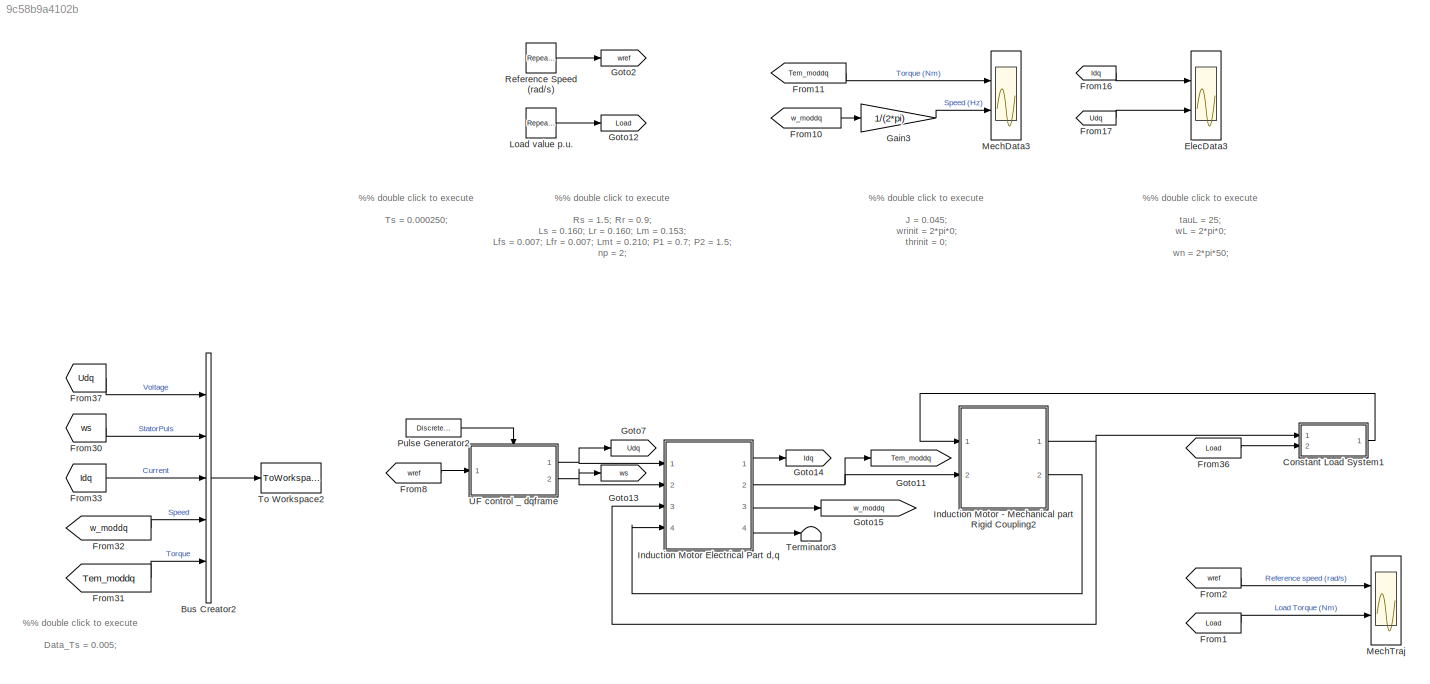
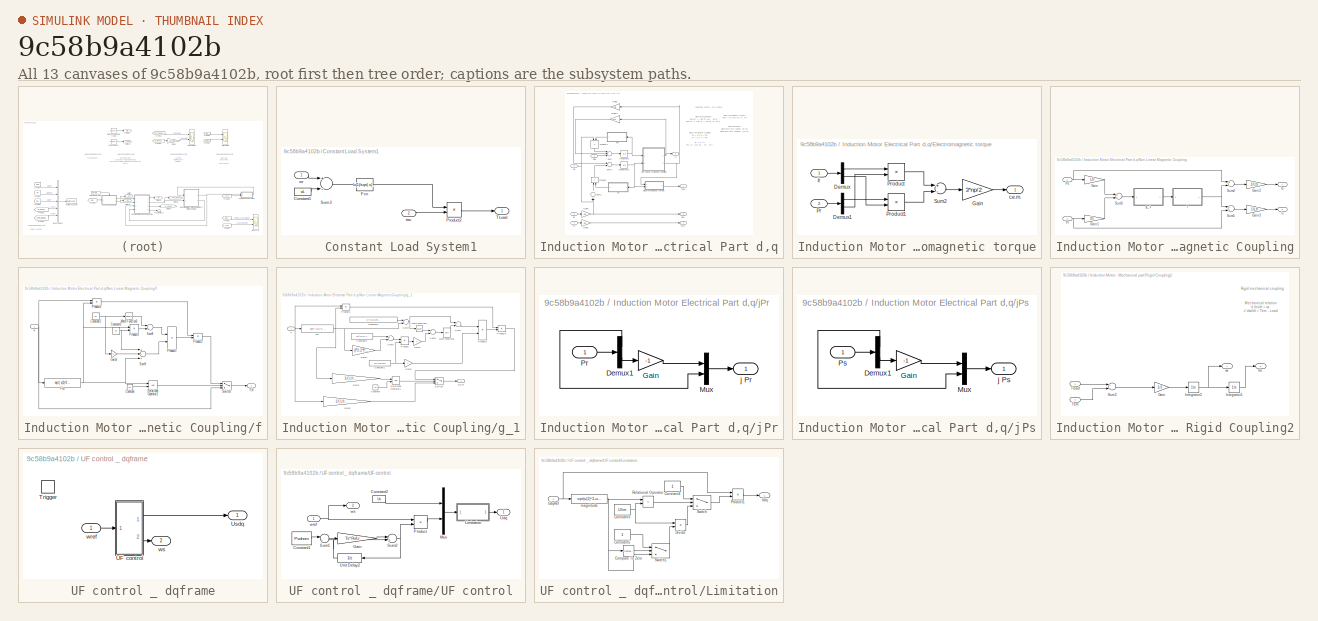
[diagram: thumbnail index - all 13 canvases of the model, root first then tree order]
MODEL slx_9c58b9a4102b
KIND model
BLOCK [BusCreator] Bus Creator2
  DisplayOption = bar
  Inputs = 5
  Ports = [5, 1]
BLOCK [SubSystem] Constant Load System1
  Ports = [2, 1]
  RequestExecContextInheritance = off
BLOCK [Constant] Constant Load System1/Constant1
  Value = wL
BLOCK [Fcn] Constant Load System1/Fcn
  Expr = u(1)/sqrt( u(1)^2 + (2*pi*0.1)^2)
BLOCK [Product] Constant Load System1/Product2
  InputSameDT = off
  OutDataTypeStr = Inherit: Inherit via internal rule
  Ports = [2, 1]
  SaturateOnIntegerOverflow = off
BLOCK [Sum] Constant Load System1/Sum2
  Inputs = +-
  Ports = [2, 1]
BLOCK [Outport] Constant Load System1/TLoad
  IconDisplay = Port number
BLOCK [Inport] Constant Load System1/tau
  IconDisplay = Port number
  Port = 2
BLOCK [Inport] Constant Load System1/wr
  IconDisplay = Port number
BLOCK [Scope] ElecData3
  Commented = on
  Floating = off
  LimitDataPoints = off
  NumInputPorts = 2
  Ports = [2]
  SampleTime = 0
  SaveName = ScopeData8
  ShowLegends = off
  TickLabels = on
  TimeRange = 10
  YMax = 25~5
  YMin = -5~-5
  ZoomMode = xonly
BLOCK [From] From1
  GotoTag = Load
  TagVisibility = global
BLOCK [From] From10
  Commented = on
  GotoTag = w_moddq
BLOCK [From] From11
  Commented = on
  GotoTag = Tem_moddq
BLOCK [From] From16
  Commented = on
  GotoTag = Idq
BLOCK [From] From17
  Commented = on
  GotoTag = Udq
BLOCK [From] From2
  GotoTag = wref
  TagVisibility = global
BLOCK [From] From30
  GotoTag = ws
  TagVisibility = global
BLOCK [From] From31
  GotoTag = Tem_moddq
BLOCK [From] From32
  GotoTag = w_moddq
BLOCK [From] From33
  GotoTag = Idq
BLOCK [From] From36
  GotoTag = Load
  TagVisibility = global
BLOCK [From] From37
  GotoTag = Udq
BLOCK [From] From8
  GotoTag = wref
  TagVisibility = global
BLOCK [Gain] Gain3
  Commented = on
  Gain = 1/(2*pi)
BLOCK [Goto] Goto11
  GotoTag = Tem_moddq
BLOCK [Goto] Goto12
  GotoTag = Load
  TagVisibility = global
BLOCK [Goto] Goto13
  GotoTag = ws
  TagVisibility = global
BLOCK [Goto] Goto14
  GotoTag = Idq
BLOCK [Goto] Goto15
  GotoTag = w_moddq
BLOCK [Goto] Goto2
  GotoTag = wref
  TagVisibility = global
BLOCK [Goto] Goto7
  GotoTag = Udq
BLOCK [SubSystem] Induction Motor - Mechanical part Rigid Coupling2
  Ports = [2, 2]
  RequestExecContextInheritance = off
BLOCK [Gain] Induction Motor - Mechanical part Rigid Coupling2/Gain
  Gain = 1/J
BLOCK [Integrator] Induction Motor - Mechanical part Rigid Coupling2/Integrator1
  InitialCondition = thrinit
  Ports = [1, 1]
BLOCK [Integrator] Induction Motor - Mechanical part Rigid Coupling2/Integrator2
  InitialCondition = wrinit
  Ports = [1, 1]
BLOCK [Sum] Induction Motor - Mechanical part Rigid Coupling2/Sum2
  Inputs = -+
  Ports = [2, 1]
BLOCK [Inport] Induction Motor - Mechanical part Rigid Coupling2/Tem
  IconDisplay = Port number
  Port = 2
BLOCK [Inport] Induction Motor - Mechanical part Rigid Coupling2/Tload
  IconDisplay = Port number
BLOCK [Outport] Induction Motor - Mechanical part Rigid Coupling2/thr
  IconDisplay = Port number
  Port = 2
BLOCK [Outport] Induction Motor - Mechanical part Rigid Coupling2/wr
  IconDisplay = Port number
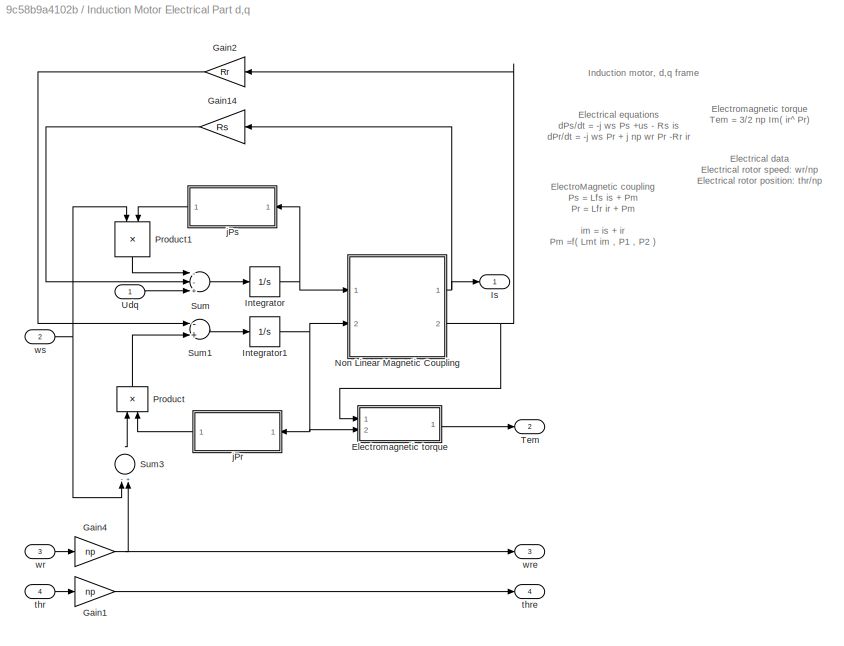
BLOCK [SubSystem] Induction Motor Electrical Part d,q
  Ports = [4, 4]
  RequestExecContextInheritance = off
BLOCK [SubSystem] Induction Motor Electrical Part d,q/Electromagnetic torque
  Ports = [2, 1]
  RequestExecContextInheritance = off
BLOCK [Demux] Induction Motor Electrical Part d,q/Electromagnetic torque/Demux
  Outputs = 2
  Ports = [1, 2]
BLOCK [Demux] Induction Motor Electrical Part d,q/Electromagnetic torque/Demux1
  Outputs = 2
  Ports = [1, 2]
BLOCK [Gain] Induction Motor Electrical Part d,q/Electromagnetic torque/Gain
  Gain = 3*np/2
BLOCK [Inport] Induction Motor Electrical Part d,q/Electromagnetic torque/Ir
  IconDisplay = Port number
BLOCK [Inport] Induction Motor Electrical Part d,q/Electromagnetic torque/Pr
  IconDisplay = Port number
  Port = 2
BLOCK [Product] Induction Motor Electrical Part d,q/Electromagnetic torque/Product
  Ports = [2, 1]
BLOCK [Product] Induction Motor Electrical Part d,q/Electromagnetic torque/Product1
  Ports = [2, 1]
BLOCK [Sum] Induction Motor Electrical Part d,q/Electromagnetic torque/Sum2
  Inputs = +-
  Ports = [2, 1]
BLOCK [Outport] Induction Motor Electrical Part d,q/Electromagnetic torque/c.e.m.
  IconDisplay = Port number
BLOCK [Gain] Induction Motor Electrical Part d,q/Gain1
  Gain = np
BLOCK [Gain] Induction Motor Electrical Part d,q/Gain14
  Gain = Rs
BLOCK [Gain] Induction Motor Electrical Part d,q/Gain2
  Gain = Rr
BLOCK [Gain] Induction Motor Electrical Part d,q/Gain4
  Gain = np
BLOCK [Integrator] Induction Motor Electrical Part d,q/Integrator
  InitialCondition = Psinit
  Ports = [1, 1]
BLOCK [Integrator] Induction Motor Electrical Part d,q/Integrator1
  InitialCondition = Prinit
  Ports = [1, 1]
BLOCK [Outport] Induction Motor Electrical Part d,q/Is
  IconDisplay = Port number
BLOCK [SubSystem] Induction Motor Electrical Part d,q/Non Linear Magnetic Coupling
  Ports = [2, 2]
  RequestExecContextInheritance = off
BLOCK [Gain] Induction Motor Electrical Part d,q/Non Linear Magnetic Coupling/Gain
  Gain = Lfr
BLOCK [Gain] Induction Motor Electrical Part d,q/Non Linear Magnetic Coupling/Gain1
  Gain = Lfs
BLOCK [Gain] Induction Motor Electrical Part d,q/Non Linear Magnetic Coupling/Gain2
  Gain = 1/Lfs
BLOCK [Gain] Induction Motor Electrical Part d,q/Non Linear Magnetic Coupling/Gain3
  Gain = 1/Lfr
BLOCK [Outport] Induction Motor Electrical Part d,q/Non Linear Magnetic Coupling/Ir
  IconDisplay = Port number
  Port = 2
BLOCK [Outport] Induction Motor Electrical Part d,q/Non Linear Magnetic Coupling/Is
  IconDisplay = Port number
BLOCK [Inport] Induction Motor Electrical Part d,q/Non Linear Magnetic Coupling/Pr
  IconDisplay = Port number
  Port = 2
BLOCK [Inport] Induction Motor Electrical Part d,q/Non Linear Magnetic Coupling/Ps
  IconDisplay = Port number
BLOCK [Sum] Induction Motor Electrical Part d,q/Non Linear Magnetic Coupling/Sum3
  Ports = [2, 1]
BLOCK [Sum] Induction Motor Electrical Part d,q/Non Linear Magnetic Coupling/Sum4
  Inputs = +-
  Ports = [2, 1]
BLOCK [Sum] Induction Motor Electrical Part d,q/Non Linear Magnetic Coupling/Sum5
  Inputs = -+
  Ports = [2, 1]
BLOCK [SubSystem] Induction Motor Electrical Part d,q/Non Linear Magnetic Coupling/f
  Ports = [1, 1]
  RequestExecContextInheritance = off
BLOCK [Constant] Induction Motor Electrical Part d,q/Non Linear Magnetic Coupling/f/Constant
  Value = P1
BLOCK [Constant] Induction Motor Electrical Part d,q/Non Linear Magnetic Coupling/f/Constant2
  Value = P1
BLOCK [Constant] Induction Motor Electrical Part d,q/Non Linear Magnetic Coupling/f/Constant3
  Value = P2
BLOCK [Fcn] Induction Motor Electrical Part d,q/Non Linear Magnetic Coupling/f/Fcn
  Expr = sqrt( u(1)^2 + u(2)^2 )
BLOCK [Gain] Induction Motor Electrical Part d,q/Non Linear Magnetic Coupling/f/Gain3
  Gain = 2
BLOCK [Math] Induction Motor Electrical Part d,q/Non Linear Magnetic Coupling/f/Math Function3
  Operator = square
  Ports = [1, 1]
BLOCK [Product] Induction Motor Electrical Part d,q/Non Linear Magnetic Coupling/f/Product1
  Inputs = */
  Ports = [2, 1]
BLOCK [Product] Induction Motor Electrical Part d,q/Non Linear Magnetic Coupling/f/Product2
  Ports = [2, 1]
BLOCK [Product] Induction Motor Electrical Part d,q/Non Linear Magnetic Coupling/f/Product3
  Inputs = */
  Ports = [2, 1]
BLOCK [Product] Induction Motor Electrical Part d,q/Non Linear Magnetic Coupling/f/Product4
  Ports = [2, 1]
BLOCK [RelationalOperator] Induction Motor Electrical Part d,q/Non Linear Magnetic Coupling/f/Relational Operator1
  Ports = [2, 1]
BLOCK [Sum] Induction Motor Electrical Part d,q/Non Linear Magnetic Coupling/f/Sum8
  Inputs = -+
  Ports = [2, 1]
BLOCK [Sum] Induction Motor Electrical Part d,q/Non Linear Magnetic Coupling/f/Sum9
  Inputs = +-+
  Ports = [3, 1]
BLOCK [Switch] Induction Motor Electrical Part d,q/Non Linear Magnetic Coupling/f/Switch
  Threshold = 0.5
BLOCK [Outport] Induction Motor Electrical Part d,q/Non Linear Magnetic Coupling/f/f(u)
  IconDisplay = Port number
  InitialOutput = 0
BLOCK [Inport] Induction Motor Electrical Part d,q/Non Linear Magnetic Coupling/f/u
  IconDisplay = Port number
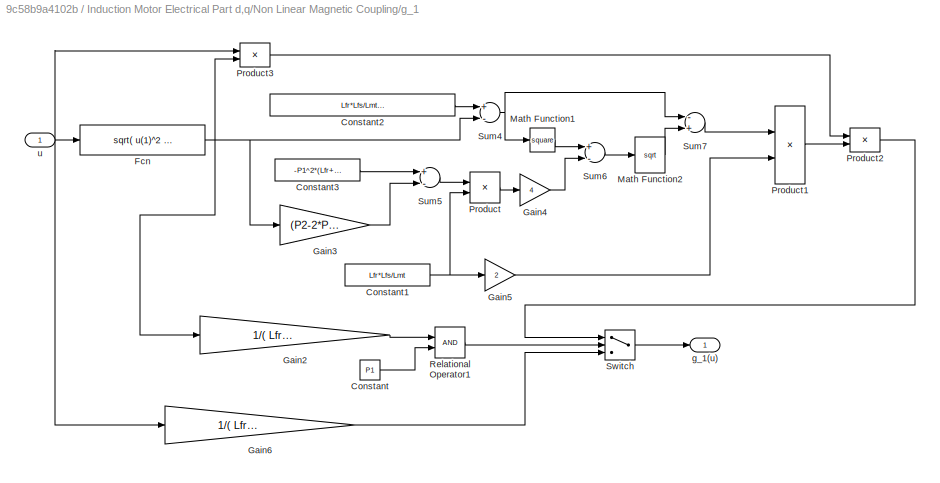
BLOCK [SubSystem] Induction Motor Electrical Part d,q/Non Linear Magnetic Coupling/g_1
  Ports = [1, 1]
  RequestExecContextInheritance = off
BLOCK [Constant] Induction Motor Electrical Part d,q/Non Linear Magnetic Coupling/g_1/Constant
  Value = P1
BLOCK [Constant] Induction Motor Electrical Part d,q/Non Linear Magnetic Coupling/g_1/Constant1
  Value = Lfr*Lfs/Lmt
BLOCK [Constant] Induction Motor Electrical Part d,q/Non Linear Magnetic Coupling/g_1/Constant2
  Value = Lfr*Lfs/Lmt*(P2-2*P1) + P2*(Lfr+Lfs)
BLOCK [Constant] Induction Motor Electrical Part d,q/Non Linear Magnetic Coupling/g_1/Constant3
  Value = -P1^2*(Lfr+Lfs)
BLOCK [Fcn] Induction Motor Electrical Part d,q/Non Linear Magnetic Coupling/g_1/Fcn
  Expr = sqrt( u(1)^2 + u(2)^2 )
BLOCK [Gain] Induction Motor Electrical Part d,q/Non Linear Magnetic Coupling/g_1/Gain2
  Gain = 1/( Lfr*Lfs/Lmt + Lfr + Lfs )
BLOCK [Gain] Induction Motor Electrical Part d,q/Non Linear Magnetic Coupling/g_1/Gain3
  Gain = (P2-2*P1)
BLOCK [Gain] Induction Motor Electrical Part d,q/Non Linear Magnetic Coupling/g_1/Gain4
  Gain = 4
BLOCK [Gain] Induction Motor Electrical Part d,q/Non Linear Magnetic Coupling/g_1/Gain5
  Gain = 2
BLOCK [Gain] Induction Motor Electrical Part d,q/Non Linear Magnetic Coupling/g_1/Gain6
  Gain = 1/( Lfr*Lfs/Lmt + Lfr + Lfs )
BLOCK [Math] Induction Motor Electrical Part d,q/Non Linear Magnetic Coupling/g_1/Math Function1
  Operator = square
  Ports = [1, 1]
BLOCK [Math] Induction Motor Electrical Part d,q/Non Linear Magnetic Coupling/g_1/Math Function2
  Operator = sqrt
  Ports = [1, 1]
BLOCK [Product] Induction Motor Electrical Part d,q/Non Linear Magnetic Coupling/g_1/Product
  Ports = [2, 1]
BLOCK [Product] Induction Motor Electrical Part d,q/Non Linear Magnetic Coupling/g_1/Product1
  Inputs = */
  Ports = [2, 1]
BLOCK [Product] Induction Motor Electrical Part d,q/Non Linear Magnetic Coupling/g_1/Product2
  Ports = [2, 1]
BLOCK [Product] Induction Motor Electrical Part d,q/Non Linear Magnetic Coupling/g_1/Product3
  Inputs = */
  Ports = [2, 1]
BLOCK [RelationalOperator] Induction Motor Electrical Part d,q/Non Linear Magnetic Coupling/g_1/Relational Operator1
  Ports = [2, 1]
BLOCK [Sum] Induction Motor Electrical Part d,q/Non Linear Magnetic Coupling/g_1/Sum4
  Inputs = +-
  Ports = [2, 1]
BLOCK [Sum] Induction Motor Electrical Part d,q/Non Linear Magnetic Coupling/g_1/Sum5
  Inputs = +-
  Ports = [2, 1]
BLOCK [Sum] Induction Motor Electrical Part d,q/Non Linear Magnetic Coupling/g_1/Sum6
  Inputs = +-
  Ports = [2, 1]
BLOCK [Sum] Induction Motor Electrical Part d,q/Non Linear Magnetic Coupling/g_1/Sum7
  Inputs = -+
  Ports = [2, 1]
BLOCK [Switch] Induction Motor Electrical Part d,q/Non Linear Magnetic Coupling/g_1/Switch
  Threshold = 0.5
BLOCK [Outport] Induction Motor Electrical Part d,q/Non Linear Magnetic Coupling/g_1/g_1(u)
  IconDisplay = Port number
  InitialOutput = 0
BLOCK [Inport] Induction Motor Electrical Part d,q/Non Linear Magnetic Coupling/g_1/u
  IconDisplay = Port number
BLOCK [Product] Induction Motor Electrical Part d,q/Product
  Ports = [2, 1]
BLOCK [Product] Induction Motor Electrical Part d,q/Product1
  Ports = [2, 1]
BLOCK [Sum] Induction Motor Electrical Part d,q/Sum
  Inputs = --+
  Ports = [3, 1]
BLOCK [Sum] Induction Motor Electrical Part d,q/Sum1
  Inputs = -+
  Ports = [2, 1]
BLOCK [Sum] Induction Motor Electrical Part d,q/Sum3
  Inputs = -+
  Ports = [2, 1]
BLOCK [Outport] Induction Motor Electrical Part d,q/Tem
  IconDisplay = Port number
  Port = 2
BLOCK [Inport] Induction Motor Electrical Part d,q/Udq
  IconDisplay = Port number
BLOCK [SubSystem] Induction Motor Electrical Part d,q/jPr
  Ports = [1, 1]
  RequestExecContextInheritance = off
BLOCK [Demux] Induction Motor Electrical Part d,q/jPr/Demux1
  Outputs = 2
  Ports = [1, 2]
BLOCK [Gain] Induction Motor Electrical Part d,q/jPr/Gain
  Gain = -1
BLOCK [Mux] Induction Motor Electrical Part d,q/jPr/Mux
  Inputs = 2
  Ports = [2, 1]
BLOCK [Inport] Induction Motor Electrical Part d,q/jPr/Pr
  IconDisplay = Port number
BLOCK [Outport] Induction Motor Electrical Part d,q/jPr/j Pr
  IconDisplay = Port number
BLOCK [SubSystem] Induction Motor Electrical Part d,q/jPs
  Ports = [1, 1]
  RequestExecContextInheritance = off
BLOCK [Demux] Induction Motor Electrical Part d,q/jPs/Demux1
  Outputs = 2
  Ports = [1, 2]
BLOCK [Gain] Induction Motor Electrical Part d,q/jPs/Gain
  Gain = -1
BLOCK [Mux] Induction Motor Electrical Part d,q/jPs/Mux
  Inputs = 2
  Ports = [2, 1]
BLOCK [Inport] Induction Motor Electrical Part d,q/jPs/Ps
  IconDisplay = Port number
BLOCK [Outport] Induction Motor Electrical Part d,q/jPs/j Ps
  IconDisplay = Port number
BLOCK [Inport] Induction Motor Electrical Part d,q/thr
  IconDisplay = Port number
  Port = 4
BLOCK [Outport] Induction Motor Electrical Part d,q/thre
  IconDisplay = Port number
  Port = 4
BLOCK [Inport] Induction Motor Electrical Part d,q/wr
  IconDisplay = Port number
  Port = 3
BLOCK [Outport] Induction Motor Electrical Part d,q/wre
  IconDisplay = Port number
  Port = 3
BLOCK [Inport] Induction Motor Electrical Part d,q/ws
  IconDisplay = Port number
  Port = 2
BLOCK [Reference] Load value p.u.  REF=simulink/Sources/Repeating
Sequence
  Ports = [0, 1]
  SourceBlock = simulink/Sources/Repeating\nSequence
  SourceType = Repeating table
  rep_seq_t = t
  rep_seq_y = TorqueLoad*Tn
BLOCK [Scope] MechData3
  Commented = on
  Floating = off
  LimitDataPoints = off
  NumInputPorts = 2
  Ports = [2]
  SampleTime = 0
  SaveName = ScopeData5
  ShowLegends = off
  TickLabels = on
  TimeRange = 10
  YMax = 60~45
  YMin = -10~-5
BLOCK [Scope] MechTraj
  DataFormat = StructureWithTime
  Floating = off
  LimitDataPoints = off
  NumInputPorts = 2
  Ports = [2]
  SampleTime = 0
  ShowLegends = off
  TickLabels = on
  TimeRange = 1
  YMax = 199.1~10.0009
  YMin = 198.85~10
  ZoomMode = xonly
BLOCK [DiscretePulseGenerator] Pulse Generator2
  Period = Ts
  Ports = [0, 1]
  PulseType = Time based
  PulseWidth = 50
BLOCK [Reference] Reference Speed (rad//s)  REF=simulink/Sources/Repeating
Sequence
  Ports = [0, 1]
  SourceBlock = simulink/Sources/Repeating\nSequence
  SourceType = Repeating table
  rep_seq_t = t
  rep_seq_y = Speed*wn
BLOCK [Terminator] Terminator3
BLOCK [ToWorkspace] To Workspace2
  FixptAsFi = on
  MaxDataPoints = inf
  Ports = [1]
  SampleTime = Data_Ts
  Save2DSignal = 3-D array (concatenate along third dimension)
  SaveFormat = Timeseries
  VariableName = Data_dq
BLOCK [SubSystem] UF control _ dqframe
  Ports = [1, 2, 0, 1]
  RequestExecContextInheritance = off
BLOCK [TriggerPort] UF control _ dqframe/Trigger
  PortDimensions = 1
  Ports = []
  StatesWhenEnabling = held
BLOCK [SubSystem] UF control _ dqframe/UF control
  Ports = [1, 2]
  RequestExecContextInheritance = off
BLOCK [Constant] UF control _ dqframe/UF control/Constant1
  Value = Psdnom
BLOCK [Constant] UF control _ dqframe/UF control/Constant2
  Value = Uo
BLOCK [Gain] UF control _ dqframe/UF control/Gain
  Gain = Ts*Rr/Lr
  OutDataTypeStr = Inherit: Inherit via internal rule
  ParamDataTypeStr = Inherit: Inherit via internal rule
  SaturateOnIntegerOverflow = off
BLOCK [SubSystem] UF control _ dqframe/UF control/Limitation
  Ports = [1, 1]
  RequestExecContextInheritance = off
BLOCK [Reference] UF control _ dqframe/UF control/Limitation/Compare To Zero  REF=simulink/Logic and Bit
Operations/Compare
To Zero
  OutDataTypeStr = boolean
  Ports = [1, 1]
  SourceBlock = simulink/Logic and Bit\nOperations/Compare\nTo Zero
  SourceType = Compare To Zero
  ZeroCross = on
  relop = <=
BLOCK [Constant] UF control _ dqframe/UF control/Limitation/Constant3
  Value = Ulim
BLOCK [Constant] UF control _ dqframe/UF control/Limitation/Constant4
BLOCK [Constant] UF control _ dqframe/UF control/Limitation/Constant5
BLOCK [Product] UF control _ dqframe/UF control/Limitation/Divide
  InputSameDT = off
  Inputs = */
  OutDataTypeStr = Inherit: Inherit via internal rule
  Ports = [2, 1]
  RndMeth = Floor
  SaturateOnIntegerOverflow = off
BLOCK [Product] UF control _ dqframe/UF control/Limitation/Product1
  InputSameDT = off
  OutDataTypeStr = Inherit: Inherit via internal rule
  Ports = [2, 1]
  RndMeth = Floor
  SaturateOnIntegerOverflow = off
BLOCK [RelationalOperator] UF control _ dqframe/UF control/Limitation/Relational Operator
  InputSameDT = off
  Operator = <=
  OutDataTypeStr = boolean
  Ports = [2, 1]
BLOCK [Switch] UF control _ dqframe/UF control/Limitation/Switch
  Criteria = u2 > Threshold
  InputSameDT = off
  SaturateOnIntegerOverflow = off
BLOCK [Switch] UF control _ dqframe/UF control/Limitation/Switch1
  Criteria = u2 > Threshold
  InputSameDT = off
  SaturateOnIntegerOverflow = off
BLOCK [Outport] UF control _ dqframe/UF control/Limitation/Udq
  IconDisplay = Port number
BLOCK [Inport] UF control _ dqframe/UF control/Limitation/UdqRef
  IconDisplay = Port number
BLOCK [Fcn] UF control _ dqframe/UF control/Limitation/magnitude
  Expr = sqrt(u(1)^2+u(2)^2)
BLOCK [Mux] UF control _ dqframe/UF control/Mux
  DisplayOption = bar
  Inputs = 2
  Ports = [2, 1]
BLOCK [Product] UF control _ dqframe/UF control/Product
  InputSameDT = off
  OutDataTypeStr = Inherit: Inherit via internal rule
  Ports = [2, 1]
  RndMeth = Floor
  SaturateOnIntegerOverflow = off
BLOCK [Sum] UF control _ dqframe/UF control/Sum1
  IconShape = round
  InputSameDT = off
  Inputs = |+-
  OutDataTypeStr = Inherit: Inherit via internal rule
  Ports = [2, 1]
  SaturateOnIntegerOverflow = off
BLOCK [Sum] UF control _ dqframe/UF control/Sum2
  IconShape = round
  InputSameDT = off
  Inputs = |++
  OutDataTypeStr = Inherit: Inherit via internal rule
  Ports = [2, 1]
  SaturateOnIntegerOverflow = off
BLOCK [Outport] UF control _ dqframe/UF control/Udq
  IconDisplay = Port number
BLOCK [UnitDelay] UF control _ dqframe/UF control/Unit Delay2
  InputProcessing = Elements as channels (sample based)
  SampleTime = -1
BLOCK [Inport] UF control _ dqframe/UF control/wref
  IconDisplay = Port number
BLOCK [Outport] UF control _ dqframe/UF control/ws
  IconDisplay = Port number
  Port = 2
BLOCK [Outport] UF control _ dqframe/Usdq
  IconDisplay = Port number
BLOCK [Inport] UF control _ dqframe/wref
  IconDisplay = Port number
BLOCK [Outport] UF control _ dqframe/ws
  IconDisplay = Port number
  Port = 2
ANNOTATION (root): %% double click to execute Data_Ts = 0.005;
ANNOTATION (root): %% double click to execute J = 0.045; wrinit = 2*pi*0; thrinit = 0;
ANNOTATION (root): %% double click to execute Rs = 1.5; Rr = 0.9; Ls = 0.160; Lr = 0.160; Lm = 0.153; Lfs = 0.007; Lfr = 0.007; Lmt = 0.210; P1 = 0.7; P2 = 1.5; np = 2; Psdnom = 0.95; Uo = 15; Ulim = 415*sqrt(2/3); Psinit = [ 0 ; 0 ]; Prinit = [ 0 ; 0 ];
ANNOTATION (root): %% double click to execute Ts = 0.000250;
ANNOTATION (root): %% double click to execute tauL = 25; wL = 2*pi*0; wn = 2*pi*50; Tn = 25;
ANNOTATION Induction Motor - Mechanical part Rigid Coupling2: Mechanical relation d thr/dt = wr J dwr/dt = Tem - Load
ANNOTATION Induction Motor - Mechanical part Rigid Coupling2: Rigid mechanical coupling
ANNOTATION Induction Motor Electrical Part d,q: Electrical data Electrical rotor speed: wr/np Electrical rotor position: thr/np
ANNOTATION Induction Motor Electrical Part d,q: Electrical equations dPs/dt = -j ws Ps +us - Rs is dPr/dt = -j ws Pr + j np wr Pr -Rr ir
ANNOTATION Induction Motor Electrical Part d,q: ElectroMagnetic coupling Ps = Lfs is + Pm Pr = Lfr ir + Pm im = is + ir Pm =f( Lmt im , P1 , P2 )
ANNOTATION Induction Motor Electrical Part d,q: Electromagnetic torque Tem = 3/2 np Im( ir^ Pr)
ANNOTATION Induction Motor Electrical Part d,q: Induction motor, d,q frame
LINE Bus Creator2:1 -> To Workspace2:1
LINE Constant Load System1/Constant1:1 -> Constant Load System1/Sum2:2
LINE Constant Load System1/Fcn:1 -> Constant Load System1/Product2:1
LINE Constant Load System1/Product2:1 -> Constant Load System1/TLoad:1
LINE Constant Load System1/Sum2:1 -> Constant Load System1/Fcn:1
LINE Constant Load System1/tau:1 -> Constant Load System1/Product2:2
LINE Constant Load System1/wr:1 -> Constant Load System1/Sum2:1
LINE Constant Load System1:1 -> Induction Motor - Mechanical part Rigid Coupling2:1
LINE From10:1 -> Gain3:1
LINE From11:1 -> MechData3:1
LINE From16:1 -> ElecData3:1
LINE From17:1 -> ElecData3:2
LINE From1:1 -> MechTraj:2
LINE From2:1 -> MechTraj:1
LINE From30:1 -> Bus Creator2:2
LINE From31:1 -> Bus Creator2:5
LINE From32:1 -> Bus Creator2:4
LINE From33:1 -> Bus Creator2:3
LINE From36:1 -> Constant Load System1:2
LINE From37:1 -> Bus Creator2:1
LINE From8:1 -> UF control _ dqframe:1
LINE Gain3:1 -> MechData3:2
LINE Induction Motor - Mechanical part Rigid Coupling2/Gain:1 -> Induction Motor - Mechanical part Rigid Coupling2/Integrator2:1
LINE Induction Motor - Mechanical part Rigid Coupling2/Integrator1:1 -> Induction Motor - Mechanical part Rigid Coupling2/thr:1
NET Induction Motor - Mechanical part Rigid Coupling2/Integrator2:1 -> Induction Motor - Mechanical part Rigid Coupling2/Integrator1:1, Induction Motor - Mechanical part Rigid Coupling2/wr:1
LINE Induction Motor - Mechanical part Rigid Coupling2/Sum2:1 -> Induction Motor - Mechanical part Rigid Coupling2/Gain:1
LINE Induction Motor - Mechanical part Rigid Coupling2/Tem:1 -> Induction Motor - Mechanical part Rigid Coupling2/Sum2:2
LINE Induction Motor - Mechanical part Rigid Coupling2/Tload:1 -> Induction Motor - Mechanical part Rigid Coupling2/Sum2:1
NET Induction Motor - Mechanical part Rigid Coupling2:1 -> Constant Load System1:1, Induction Motor Electrical Part d,q:3
LINE Induction Motor - Mechanical part Rigid Coupling2:2 -> Induction Motor Electrical Part d,q:4
LINE Induction Motor Electrical Part d,q/Electromagnetic torque/Demux1:1 -> Induction Motor Electrical Part d,q/Electromagnetic torque/Product1:1
LINE Induction Motor Electrical Part d,q/Electromagnetic torque/Demux1:2 -> Induction Motor Electrical Part d,q/Electromagnetic torque/Product:2
LINE Induction Motor Electrical Part d,q/Electromagnetic torque/Demux:1 -> Induction Motor Electrical Part d,q/Electromagnetic torque/Product:1
LINE Induction Motor Electrical Part d,q/Electromagnetic torque/Demux:2 -> Induction Motor Electrical Part d,q/Electromagnetic torque/Product1:2
LINE Induction Motor Electrical Part d,q/Electromagnetic torque/Gain:1 -> Induction Motor Electrical Part d,q/Electromagnetic torque/c.e.m.:1
LINE Induction Motor Electrical Part d,q/Electromagnetic torque/Ir:1 -> Induction Motor Electrical Part d,q/Electromagnetic torque/Demux:1
LINE Induction Motor Electrical Part d,q/Electromagnetic torque/Pr:1 -> Induction Motor Electrical Part d,q/Electromagnetic torque/Demux1:1
LINE Induction Motor Electrical Part d,q/Electromagnetic torque/Product1:1 -> Induction Motor Electrical Part d,q/Electromagnetic torque/Sum2:2
LINE Induction Motor Electrical Part d,q/Electromagnetic torque/Product:1 -> Induction Motor Electrical Part d,q/Electromagnetic torque/Sum2:1
LINE Induction Motor Electrical Part d,q/Electromagnetic torque/Sum2:1 -> Induction Motor Electrical Part d,q/Electromagnetic torque/Gain:1
LINE Induction Motor Electrical Part d,q/Electromagnetic torque:1 -> Induction Motor Electrical Part d,q/Tem:1
LINE Induction Motor Electrical Part d,q/Gain14:1 -> Induction Motor Electrical Part d,q/Sum:2
LINE Induction Motor Electrical Part d,q/Gain1:1 -> Induction Motor Electrical Part d,q/thre:1
LINE Induction Motor Electrical Part d,q/Gain2:1 -> Induction Motor Electrical Part d,q/Sum1:1
NET Induction Motor Electrical Part d,q/Gain4:1 -> Induction Motor Electrical Part d,q/Sum3:2, Induction Motor Electrical Part d,q/wre:1
NET Induction Motor Electrical Part d,q/Integrator1:1 -> Induction Motor Electrical Part d,q/Electromagnetic torque:2, Induction Motor Electrical Part d,q/Non Linear Magnetic Coupling:2, Induction Motor Electrical Part d,q/jPr:1
NET Induction Motor Electrical Part d,q/Integrator:1 -> Induction Motor Electrical Part d,q/Non Linear Magnetic Coupling:1, Induction Motor Electrical Part d,q/jPs:1
LINE Induction Motor Electrical Part d,q/Non Linear Magnetic Coupling/Gain1:1 -> Induction Motor Electrical Part d,q/Non Linear Magnetic Coupling/Sum3:2
LINE Induction Motor Electrical Part d,q/Non Linear Magnetic Coupling/Gain2:1 -> Induction Motor Electrical Part d,q/Non Linear Magnetic Coupling/Is:1
LINE Induction Motor Electrical Part d,q/Non Linear Magnetic Coupling/Gain3:1 -> Induction Motor Electrical Part d,q/Non Linear Magnetic Coupling/Ir:1
LINE Induction Motor Electrical Part d,q/Non Linear Magnetic Coupling/Gain:1 -> Induction Motor Electrical Part d,q/Non Linear Magnetic Coupling/Sum3:1
NET Induction Motor Electrical Part d,q/Non Linear Magnetic Coupling/Pr:1 -> Induction Motor Electrical Part d,q/Non Linear Magnetic Coupling/Gain1:1, Induction Motor Electrical Part d,q/Non Linear Magnetic Coupling/Sum5:2
NET Induction Motor Electrical Part d,q/Non Linear Magnetic Coupling/Ps:1 -> Induction Motor Electrical Part d,q/Non Linear Magnetic Coupling/Gain:1, Induction Motor Electrical Part d,q/Non Linear Magnetic Coupling/Sum4:1
LINE Induction Motor Electrical Part d,q/Non Linear Magnetic Coupling/Sum3:1 -> Induction Motor Electrical Part d,q/Non Linear Magnetic Coupling/g_1:1
LINE Induction Motor Electrical Part d,q/Non Linear Magnetic Coupling/Sum4:1 -> Induction Motor Electrical Part d,q/Non Linear Magnetic Coupling/Gain2:1
LINE Induction Motor Electrical Part d,q/Non Linear Magnetic Coupling/Sum5:1 -> Induction Motor Electrical Part d,q/Non Linear Magnetic Coupling/Gain3:1
NET Induction Motor Electrical Part d,q/Non Linear Magnetic Coupling/f/Constant2:1 -> Induction Motor Electrical Part d,q/Non Linear Magnetic Coupling/f/Gain3:1, Induction Motor Electrical Part d,q/Non Linear Magnetic Coupling/f/Math Function3:1
NET Induction Motor Electrical Part d,q/Non Linear Magnetic Coupling/f/Constant3:1 -> Induction Motor Electrical Part d,q/Non Linear Magnetic Coupling/f/Product4:2, Induction Motor Electrical Part d,q/Non Linear Magnetic Coupling/f/Sum9:1
LINE Induction Motor Electrical Part d,q/Non Linear Magnetic Coupling/f/Constant:1 -> Induction Motor Electrical Part d,q/Non Linear Magnetic Coupling/f/Relational Operator1:2
NET Induction Motor Electrical Part d,q/Non Linear Magnetic Coupling/f/Fcn:1 -> Induction Motor Electrical Part d,q/Non Linear Magnetic Coupling/f/Product3:2, Induction Motor Electrical Part d,q/Non Linear Magnetic Coupling/f/Product4:1, Induction Motor Electrical Part d,q/Non Linear Magnetic Coupling/f/Relational Operator1:1, Induction Motor Electrical Part d,q/Non Linear Magnetic Coupling/f/Sum9:3
LINE Induction Motor Electrical Part d,q/Non Linear Magnetic Coupling/f/Gain3:1 -> Induction Motor Electrical Part d,q/Non Linear Magnetic Coupling/f/Sum9:2
LINE Induction Motor Electrical Part d,q/Non Linear Magnetic Coupling/f/Math Function3:1 -> Induction Motor Electrical Part d,q/Non Linear Magnetic Coupling/f/Sum8:1
LINE Induction Motor Electrical Part d,q/Non Linear Magnetic Coupling/f/Product1:1 -> Induction Motor Electrical Part d,q/Non Linear Magnetic Coupling/f/Product2:2
LINE Induction Motor Electrical Part d,q/Non Linear Magnetic Coupling/f/Product2:1 -> Induction Motor Electrical Part d,q/Non Linear Magnetic Coupling/f/Switch:1
LINE Induction Motor Electrical Part d,q/Non Linear Magnetic Coupling/f/Product3:1 -> Induction Motor Electrical Part d,q/Non Linear Magnetic Coupling/f/Product2:1
LINE Induction Motor Electrical Part d,q/Non Linear Magnetic Coupling/f/Product4:1 -> Induction Motor Electrical Part d,q/Non Linear Magnetic Coupling/f/Sum8:2
LINE Induction Motor Electrical Part d,q/Non Linear Magnetic Coupling/f/Relational Operator1:1 -> Induction Motor Electrical Part d,q/Non Linear Magnetic Coupling/f/Switch:2
LINE Induction Motor Electrical Part d,q/Non Linear Magnetic Coupling/f/Sum8:1 -> Induction Motor Electrical Part d,q/Non Linear Magnetic Coupling/f/Product1:1
LINE Induction Motor Electrical Part d,q/Non Linear Magnetic Coupling/f/Sum9:1 -> Induction Motor Electrical Part d,q/Non Linear Magnetic Coupling/f/Product1:2
LINE Induction Motor Electrical Part d,q/Non Linear Magnetic Coupling/f/Switch:1 -> Induction Motor Electrical Part d,q/Non Linear Magnetic Coupling/f/f(u):1
NET Induction Motor Electrical Part d,q/Non Linear Magnetic Coupling/f/u:1 -> Induction Motor Electrical Part d,q/Non Linear Magnetic Coupling/f/Fcn:1, Induction Motor Electrical Part d,q/Non Linear Magnetic Coupling/f/Product3:1, Induction Motor Electrical Part d,q/Non Linear Magnetic Coupling/f/Switch:3
NET Induction Motor Electrical Part d,q/Non Linear Magnetic Coupling/f:1 -> Induction Motor Electrical Part d,q/Non Linear Magnetic Coupling/Sum4:2, Induction Motor Electrical Part d,q/Non Linear Magnetic Coupling/Sum5:1
NET Induction Motor Electrical Part d,q/Non Linear Magnetic Coupling/g_1/Constant1:1 -> Induction Motor Electrical Part d,q/Non Linear Magnetic Coupling/g_1/Gain5:1, Induction Motor Electrical Part d,q/Non Linear Magnetic Coupling/g_1/Product:2
LINE Induction Motor Electrical Part d,q/Non Linear Magnetic Coupling/g_1/Constant2:1 -> Induction Motor Electrical Part d,q/Non Linear Magnetic Coupling/g_1/Sum4:1
LINE Induction Motor Electrical Part d,q/Non Linear Magnetic Coupling/g_1/Constant3:1 -> Induction Motor Electrical Part d,q/Non Linear Magnetic Coupling/g_1/Sum5:1
LINE Induction Motor Electrical Part d,q/Non Linear Magnetic Coupling/g_1/Constant:1 -> Induction Motor Electrical Part d,q/Non Linear Magnetic Coupling/g_1/Relational Operator1:2
NET Induction Motor Electrical Part d,q/Non Linear Magnetic Coupling/g_1/Fcn:1 -> Induction Motor Electrical Part d,q/Non Linear Magnetic Coupling/g_1/Gain2:1, Induction Motor Electrical Part d,q/Non Linear Magnetic Coupling/g_1/Gain3:1, Induction Motor Electrical Part d,q/Non Linear Magnetic Coupling/g_1/Product3:2, Induction Motor Electrical Part d,q/Non Linear Magnetic Coupling/g_1/Sum4:2
LINE Induction Motor Electrical Part d,q/Non Linear Magnetic Coupling/g_1/Gain2:1 -> Induction Motor Electrical Part d,q/Non Linear Magnetic Coupling/g_1/Relational Operator1:1
LINE Induction Motor Electrical Part d,q/Non Linear Magnetic Coupling/g_1/Gain3:1 -> Induction Motor Electrical Part d,q/Non Linear Magnetic Coupling/g_1/Sum5:2
LINE Induction Motor Electrical Part d,q/Non Linear Magnetic Coupling/g_1/Gain4:1 -> Induction Motor Electrical Part d,q/Non Linear Magnetic Coupling/g_1/Sum6:2
LINE Induction Motor Electrical Part d,q/Non Linear Magnetic Coupling/g_1/Gain5:1 -> Induction Motor Electrical Part d,q/Non Linear Magnetic Coupling/g_1/Product1:2
LINE Induction Motor Electrical Part d,q/Non Linear Magnetic Coupling/g_1/Gain6:1 -> Induction Motor Electrical Part d,q/Non Linear Magnetic Coupling/g_1/Switch:3
LINE Induction Motor Electrical Part d,q/Non Linear Magnetic Coupling/g_1/Math Function1:1 -> Induction Motor Electrical Part d,q/Non Linear Magnetic Coupling/g_1/Sum6:1
LINE Induction Motor Electrical Part d,q/Non Linear Magnetic Coupling/g_1/Math Function2:1 -> Induction Motor Electrical Part d,q/Non Linear Magnetic Coupling/g_1/Sum7:2
LINE Induction Motor Electrical Part d,q/Non Linear Magnetic Coupling/g_1/Product1:1 -> Induction Motor Electrical Part d,q/Non Linear Magnetic Coupling/g_1/Product2:2
LINE Induction Motor Electrical Part d,q/Non Linear Magnetic Coupling/g_1/Product2:1 -> Induction Motor Electrical Part d,q/Non Linear Magnetic Coupling/g_1/Switch:1
LINE Induction Motor Electrical Part d,q/Non Linear Magnetic Coupling/g_1/Product3:1 -> Induction Motor Electrical Part d,q/Non Linear Magnetic Coupling/g_1/Product2:1
LINE Induction Motor Electrical Part d,q/Non Linear Magnetic Coupling/g_1/Product:1 -> Induction Motor Electrical Part d,q/Non Linear Magnetic Coupling/g_1/Gain4:1
LINE Induction Motor Electrical Part d,q/Non Linear Magnetic Coupling/g_1/Relational Operator1:1 -> Induction Motor Electrical Part d,q/Non Linear Magnetic Coupling/g_1/Switch:2
NET Induction Motor Electrical Part d,q/Non Linear Magnetic Coupling/g_1/Sum4:1 -> Induction Motor Electrical Part d,q/Non Linear Magnetic Coupling/g_1/Math Function1:1, Induction Motor Electrical Part d,q/Non Linear Magnetic Coupling/g_1/Sum7:1
LINE Induction Motor Electrical Part d,q/Non Linear Magnetic Coupling/g_1/Sum5:1 -> Induction Motor Electrical Part d,q/Non Linear Magnetic Coupling/g_1/Product:1
LINE Induction Motor Electrical Part d,q/Non Linear Magnetic Coupling/g_1/Sum6:1 -> Induction Motor Electrical Part d,q/Non Linear Magnetic Coupling/g_1/Math Function2:1
LINE Induction Motor Electrical Part d,q/Non Linear Magnetic Coupling/g_1/Sum7:1 -> Induction Motor Electrical Part d,q/Non Linear Magnetic Coupling/g_1/Product1:1
LINE Induction Motor Electrical Part d,q/Non Linear Magnetic Coupling/g_1/Switch:1 -> Induction Motor Electrical Part d,q/Non Linear Magnetic Coupling/g_1/g_1(u):1
NET Induction Motor Electrical Part d,q/Non Linear Magnetic Coupling/g_1/u:1 -> Induction Motor Electrical Part d,q/Non Linear Magnetic Coupling/g_1/Fcn:1, Induction Motor Electrical Part d,q/Non Linear Magnetic Coupling/g_1/Gain6:1, Induction Motor Electrical Part d,q/Non Linear Magnetic Coupling/g_1/Product3:1
LINE Induction Motor Electrical Part d,q/Non Linear Magnetic Coupling/g_1:1 -> Induction Motor Electrical Part d,q/Non Linear Magnetic Coupling/f:1
NET Induction Motor Electrical Part d,q/Non Linear Magnetic Coupling:1 -> Induction Motor Electrical Part d,q/Gain14:1, Induction Motor Electrical Part d,q/Is:1
NET Induction Motor Electrical Part d,q/Non Linear Magnetic Coupling:2 -> Induction Motor Electrical Part d,q/Electromagnetic torque:1, Induction Motor Electrical Part d,q/Gain2:1
LINE Induction Motor Electrical Part d,q/Product1:1 -> Induction Motor Electrical Part d,q/Sum:1
LINE Induction Motor Electrical Part d,q/Product:1 -> Induction Motor Electrical Part d,q/Sum1:2
LINE Induction Motor Electrical Part d,q/Sum1:1 -> Induction Motor Electrical Part d,q/Integrator1:1
LINE Induction Motor Electrical Part d,q/Sum3:1 -> Induction Motor Electrical Part d,q/Product:1
LINE Induction Motor Electrical Part d,q/Sum:1 -> Induction Motor Electrical Part d,q/Integrator:1
LINE Induction Motor Electrical Part d,q/Udq:1 -> Induction Motor Electrical Part d,q/Sum:3
LINE Induction Motor Electrical Part d,q/jPr/Demux1:1 -> Induction Motor Electrical Part d,q/jPr/Mux:2
LINE Induction Motor Electrical Part d,q/jPr/Demux1:2 -> Induction Motor Electrical Part d,q/jPr/Gain:1
LINE Induction Motor Electrical Part d,q/jPr/Gain:1 -> Induction Motor Electrical Part d,q/jPr/Mux:1
LINE Induction Motor Electrical Part d,q/jPr/Mux:1 -> Induction Motor Electrical Part d,q/jPr/j Pr:1
LINE Induction Motor Electrical Part d,q/jPr/Pr:1 -> Induction Motor Electrical Part d,q/jPr/Demux1:1
LINE Induction Motor Electrical Part d,q/jPr:1 -> Induction Motor Electrical Part d,q/Product:2
LINE Induction Motor Electrical Part d,q/jPs/Demux1:1 -> Induction Motor Electrical Part d,q/jPs/Mux:2
LINE Induction Motor Electrical Part d,q/jPs/Demux1:2 -> Induction Motor Electrical Part d,q/jPs/Gain:1
LINE Induction Motor Electrical Part d,q/jPs/Gain:1 -> Induction Motor Electrical Part d,q/jPs/Mux:1
LINE Induction Motor Electrical Part d,q/jPs/Mux:1 -> Induction Motor Electrical Part d,q/jPs/j Ps:1
LINE Induction Motor Electrical Part d,q/jPs/Ps:1 -> Induction Motor Electrical Part d,q/jPs/Demux1:1
LINE Induction Motor Electrical Part d,q/jPs:1 -> Induction Motor Electrical Part d,q/Product1:2
LINE Induction Motor Electrical Part d,q/thr:1 -> Induction Motor Electrical Part d,q/Gain1:1
LINE Induction Motor Electrical Part d,q/wr:1 -> Induction Motor Electrical Part d,q/Gain4:1
NET Induction Motor Electrical Part d,q/ws:1 -> Induction Motor Electrical Part d,q/Product1:1, Induction Motor Electrical Part d,q/Sum3:1
LINE Induction Motor Electrical Part d,q:1 -> Goto14:1
NET Induction Motor Electrical Part d,q:2 -> Goto11:1, Induction Motor - Mechanical part Rigid Coupling2:2
LINE Induction Motor Electrical Part d,q:3 -> Goto15:1
LINE Induction Motor Electrical Part d,q:4 -> Terminator3:1
LINE Load value p.u.:1 -> Goto12:1
LINE Pulse Generator2:1 -> UF control _ dqframe:trigger
LINE Reference Speed (rad//s):1 -> Goto2:1
LINE UF control _ dqframe/UF control/Constant1:1 -> UF control _ dqframe/UF control/Sum1:1
LINE UF control _ dqframe/UF control/Constant2:1 -> UF control _ dqframe/UF control/Mux:1
LINE UF control _ dqframe/UF control/Gain:1 -> UF control _ dqframe/UF control/Sum2:1
LINE UF control _ dqframe/UF control/Limitation/Compare To Zero:1 -> UF control _ dqframe/UF control/Limitation/Switch1:2
NET UF control _ dqframe/UF control/Limitation/Constant3:1 -> UF control _ dqframe/UF control/Limitation/Divide:1, UF control _ dqframe/UF control/Limitation/Relational Operator:2
LINE UF control _ dqframe/UF control/Limitation/Constant4:1 -> UF control _ dqframe/UF control/Limitation/Switch:1
LINE UF control _ dqframe/UF control/Limitation/Constant5:1 -> UF control _ dqframe/UF control/Limitation/Switch1:1
LINE UF control _ dqframe/UF control/Limitation/Divide:1 -> UF control _ dqframe/UF control/Limitation/Switch:3
LINE UF control _ dqframe/UF control/Limitation/Product1:1 -> UF control _ dqframe/UF control/Limitation/Udq:1
LINE UF control _ dqframe/UF control/Limitation/Relational Operator:1 -> UF control _ dqframe/UF control/Limitation/Switch:2
LINE UF control _ dqframe/UF control/Limitation/Switch1:1 -> UF control _ dqframe/UF control/Limitation/Divide:2
LINE UF control _ dqframe/UF control/Limitation/Switch:1 -> UF control _ dqframe/UF control/Limitation/Product1:2
NET UF control _ dqframe/UF control/Limitation/UdqRef:1 -> UF control _ dqframe/UF control/Limitation/Product1:1, UF control _ dqframe/UF control/Limitation/magnitude:1
NET UF control _ dqframe/UF control/Limitation/magnitude:1 -> UF control _ dqframe/UF control/Limitation/Compare To Zero:1, UF control _ dqframe/UF control/Limitation/Relational Operator:1, UF control _ dqframe/UF control/Limitation/Switch1:3
LINE UF control _ dqframe/UF control/Limitation:1 -> UF control _ dqframe/UF control/Udq:1
LINE UF control _ dqframe/UF control/Mux:1 -> UF control _ dqframe/UF control/Limitation:1
LINE UF control _ dqframe/UF control/Product:1 -> UF control _ dqframe/UF control/Mux:2
LINE UF control _ dqframe/UF control/Sum1:1 -> UF control _ dqframe/UF control/Gain:1
NET UF control _ dqframe/UF control/Sum2:1 -> UF control _ dqframe/UF control/Product:2, UF control _ dqframe/UF control/Unit Delay2:1
NET UF control _ dqframe/UF control/Unit Delay2:1 -> UF control _ dqframe/UF control/Sum1:2, UF control _ dqframe/UF control/Sum2:2
NET UF control _ dqframe/UF control/wref:1 -> UF control _ dqframe/UF control/Product:1, UF control _ dqframe/UF control/ws:1
LINE UF control _ dqframe/UF control:1 -> UF control _ dqframe/Usdq:1
LINE UF control _ dqframe/UF control:2 -> UF control _ dqframe/ws:1
LINE UF control _ dqframe/wref:1 -> UF control _ dqframe/UF control:1
NET UF control _ dqframe:1 -> Goto7:1, Induction Motor Electrical Part d,q:1
NET UF control _ dqframe:2 -> Goto13:1, Induction Motor Electrical Part d,q:2
note: NET lines group one-source signal fan-out (src -> all destinations, sorted); 1:1 wires keep LINE
